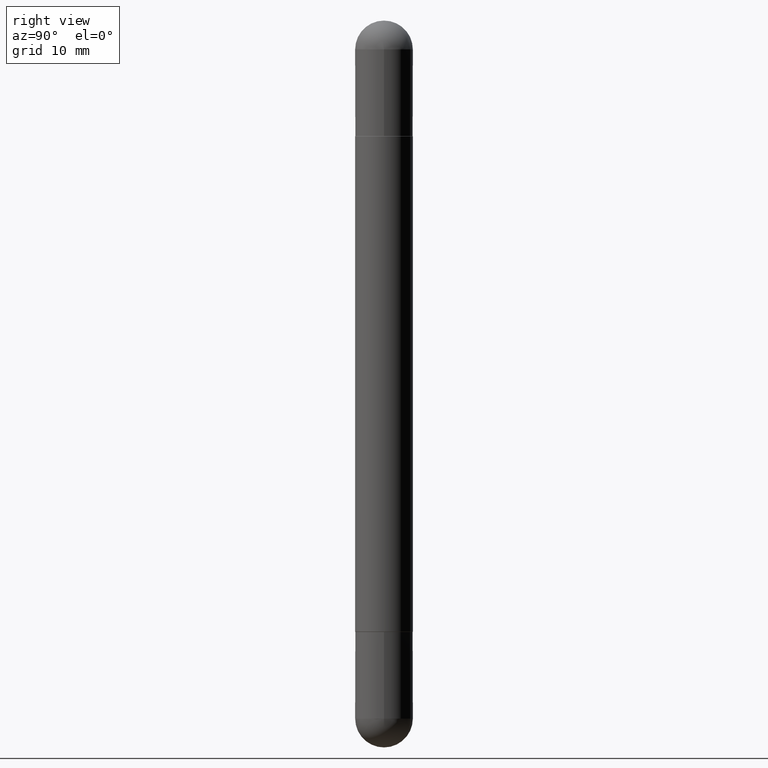
[diagram: clean part render]
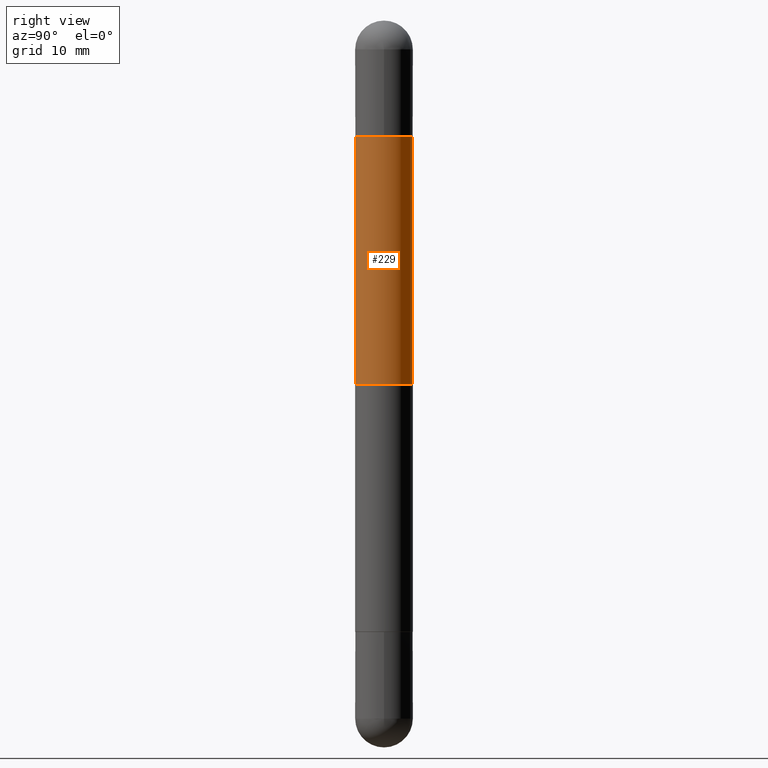
[diagram: same view with one face highlighted and labeled with its STEP entity id]
A machine part, right view. The second image highlights one B-rep face of the part: STEP entity #229.
In plain terms, the highlighted cylindrical surface (edge-blend (fillet) strip) has radius 2.5006 mm, axis along (-0, 0, -1).
Its self-contained STEP definition (entity closure, byte-faithful):
#6 = AXIS2_PLACEMENT_3D ( 'NONE', #487, #69, #309 ) ;
#10 = VERTEX_POINT ( 'NONE', #49 ) ;
#49 = CARTESIAN_POINT ( 'NONE',  ( -6.874726756181635521E-16, -0.09845000000000754536, -0.3947000000000003839 ) ) ;
#63 = EDGE_CURVE ( 'NONE', #10, #118, #183, .T. ) ;
#69 = DIRECTION ( 'NONE',  ( -2.445824352885372423E-29, 3.490972175731946571E-15, -1.000000000000000000 ) ) ;
#88 = VECTOR ( 'NONE', #299, 39.37007874015748143 ) ;
#118 = VERTEX_POINT ( 'NONE', #296 ) ;
#133 = DIRECTION ( 'NONE',  ( -1.000000000000000000, 0.000000000000000000, 0.000000000000000000 ) ) ;
#183 = CIRCLE ( 'NONE', #626, 0.09845000000000024565 ) ;
#191 = FACE_OUTER_BOUND ( 'NONE', #619, .T. ) ;
#200 = CARTESIAN_POINT ( 'NONE',  ( 3.033189071230795029E-29, -4.329329143733974331E-15, -1.240150000000000086 ) ) ;
#204 = EDGE_CURVE ( 'NONE', #118, #650, #794, .T. ) ;
#227 = ORIENTED_EDGE ( 'NONE', *, *, #784, .F. ) ;
#229 = ADVANCED_FACE ( 'NONE', ( #191 ), #685, .T. ) ;
#272 = ORIENTED_EDGE ( 'NONE', *, *, #715, .T. ) ;
#296 = CARTESIAN_POINT ( 'NONE',  ( 6.754160278806600606E-16, 0.09844999999999295981, -0.3946999999999996622 ) ) ;
#299 = DIRECTION ( 'NONE',  ( -2.445824352885372423E-29, 3.490972175731946571E-15, -1.000000000000000000 ) ) ;
#309 = DIRECTION ( 'NONE',  ( -6.982962677686265133E-15, -1.000000000000000000, -5.549716594543950441E-15 ) ) ;
#343 = VERTEX_POINT ( 'NONE', #616 ) ;
#367 = CIRCLE ( 'NONE', #537, 0.09845000000000013463 ) ;
#406 = CARTESIAN_POINT ( 'NONE',  ( 5.101011270377733069E-29, -7.280771569706549945E-15, -0.3947000000000000508 ) ) ;
#445 = DIRECTION ( 'NONE',  ( 2.445824352885372423E-29, -3.490972175731946571E-15, 1.000000000000000000 ) ) ;
#464 = CARTESIAN_POINT ( 'NONE',  ( 6.754160278806080944E-16, 0.09845000000000013463, -2.480299999999999727 ) ) ;
#487 = CARTESIAN_POINT ( 'NONE',  ( 0.000000000000000000, 0.000000000000000000, -2.480300000000000171 ) ) ;
#537 = AXIS2_PLACEMENT_3D ( 'NONE', #200, #747, #133 ) ;
#589 = CARTESIAN_POINT ( 'NONE',  ( -6.874726756182137434E-16, -0.09845000000000013463, -2.480300000000001059 ) ) ;
#616 = CARTESIAN_POINT ( 'NONE',  ( -6.874726756181731170E-16, -0.09845000000000446450, -1.240150000000000086 ) ) ;
#619 = EDGE_LOOP ( 'NONE', ( #806, #733, #272, #227 ) ) ;
#626 = AXIS2_PLACEMENT_3D ( 'NONE', #406, #445, #771 ) ;
#650 = VERTEX_POINT ( 'NONE', #793 ) ;
#685 = CYLINDRICAL_SURFACE ( 'NONE', #6, 0.09845000000000013463 ) ;
#715 = EDGE_CURVE ( 'NONE', #10, #343, #804, .T. ) ;
#719 = DIRECTION ( 'NONE',  ( -2.445824352885372423E-29, 3.490972175731946571E-15, -1.000000000000000000 ) ) ;
#733 = ORIENTED_EDGE ( 'NONE', *, *, #63, .F. ) ;
#747 = DIRECTION ( 'NONE',  ( -0.000000000000000000, -0.000000000000000000, -1.000000000000000000 ) ) ;
#754 = VECTOR ( 'NONE', #719, 39.37007874015748143 ) ;
#771 = DIRECTION ( 'NONE',  ( -6.982962677686265922E-15, -1.000000000000000000, -3.468572871589965081E-15 ) ) ;
#784 = EDGE_CURVE ( 'NONE', #650, #343, #367, .T. ) ;
#793 = CARTESIAN_POINT ( 'NONE',  ( 6.754160278806588773E-16, 0.09844999999999579088, -1.240150000000000086 ) ) ;
#794 = LINE ( 'NONE', #464, #754 ) ;
#804 = LINE ( 'NONE', #589, #88 ) ;
#806 = ORIENTED_EDGE ( 'NONE', *, *, #204, .F. ) ;